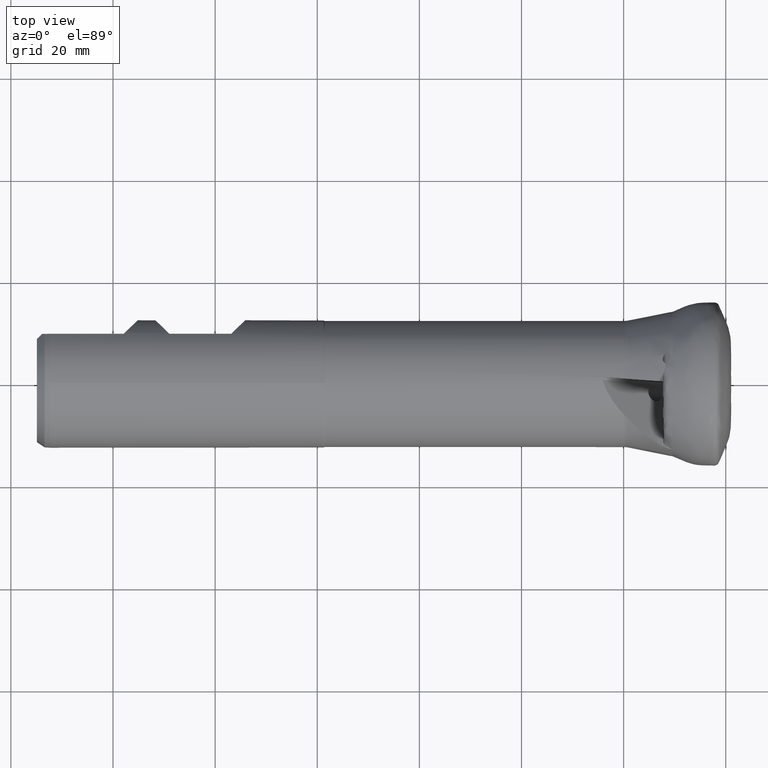
[diagram: clean part render]
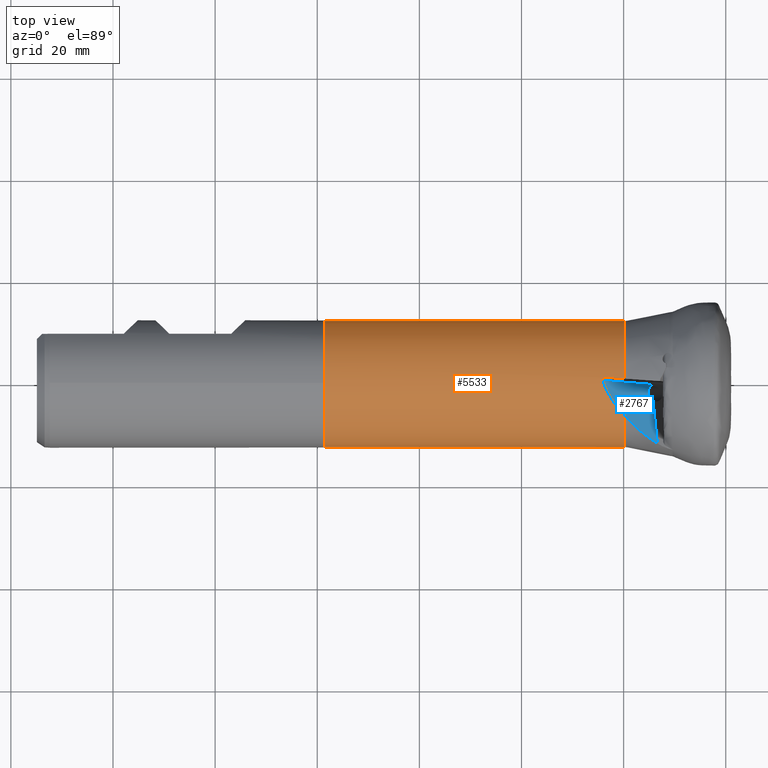
[diagram: same view with the hole feature highlighted: cylindrical wall and planar end face, labeled with their STEP entity ids]
A machine part, top view. The highlighted faces form one hole feature of diameter 24.8 mm: the cylindrical wall (entity #5533, orange) and its adjacent planar end face (entity #2767, blue) — they share a circular edge in the B-rep.
Wall:
#23 = VERTEX_POINT ( 'NONE', #3856 ) ;
#113 = CARTESIAN_POINT ( 'NONE',  ( -23.40010465994685200, -1.845840560606097700, 12.48686495285099700 ) ) ;
#140 = CARTESIAN_POINT ( 'NONE',  ( -24.08616488717508400, 0.5120036210849755500, 12.38942501861952600 ) ) ;
#211 =( BOUNDED_CURVE ( )  B_SPLINE_CURVE ( 3, ( #140, #113, #3755, #3809 ),
 .UNSPECIFIED., .F., .F. ) 
 B_SPLINE_CURVE_WITH_KNOTS ( ( 4, 4 ),
 ( 3.382142440947793400, 3.945495559307737700 ),
 .UNSPECIFIED. ) 
 CURVE ( )  GEOMETRIC_REPRESENTATION_ITEM ( )  RATIONAL_B_SPLINE_CURVE ( ( 1.000000000000000000, 0.9737271741579591700, 0.9737271741579591700, 1.000000000000000000 ) ) 
 REPRESENTATION_ITEM ( '' )  );
#429 = B_SPLINE_CURVE_WITH_KNOTS ( 'NONE', 3,
 ( #1672, #1678, #1661, #1658, #1651, #1648, #1640, #1636, #1627, #1613, #1606, #1590 ),
 .UNSPECIFIED., .F., .F.,
 ( 4, 2, 2, 2, 2, 4 ),
 ( 9.757819552369539900E-019, 0.0001468692598765670900, 0.0002937385197531332000, 0.0005874770395062651100, 0.0008812155592593970100, 0.001174954079012528900 ),
 .UNSPECIFIED. ) ;
#473 = CARTESIAN_POINT ( 'NONE',  ( -19.89004134527376500, 6.183368900197933700, -10.74829982109099400 ) ) ;
#489 = CARTESIAN_POINT ( 'NONE',  ( -24.08616488717508400, -0.5120036210849755500, -12.38942501861952600 ) ) ;
#506 = EDGE_CURVE ( 'NONE', #5817, #1637, #4054, .T. ) ;
#537 = CARTESIAN_POINT ( 'NONE',  ( -23.24405145381696900, -1.084063789852097900, -12.35252224039816000 ) ) ;
#544 = CARTESIAN_POINT ( 'NONE',  ( -19.89004134527376900, -0.8495285557354106400, -12.37086501555124900 ) ) ;
#547 =( BOUNDED_CURVE ( )  B_SPLINE_CURVE ( 3, ( #1298, #1254, #2860, #2671 ),
 .UNSPECIFIED., .F., .T. ) 
 B_SPLINE_CURVE_WITH_KNOTS ( ( 4, 4 ),
 ( 1.639360401890296300, 1.658332575621686200 ),
 .UNSPECIFIED. ) 
 CURVE ( )  GEOMETRIC_REPRESENTATION_ITEM ( )  RATIONAL_B_SPLINE_CURVE ( ( 1.000000000000000000, 0.9999700049435873400, 0.9999700049435873400, 1.000000000000000000 ) ) 
 REPRESENTATION_ITEM ( '' )  );
#615 = ORIENTED_EDGE ( 'NONE', *, *, #506, .F. ) ;
#716 = CARTESIAN_POINT ( 'NONE',  ( -19.89004134527376900, -0.8495285557354106400, -12.37086501555124900 ) ) ;
#788 = CARTESIAN_POINT ( 'NONE',  ( -78.55884901552569500, 0.0000000000000000000, -12.39999999999999000 ) ) ;
#823 =( BOUNDED_CURVE ( )  B_SPLINE_CURVE ( 3, ( #544, #5046, #3806, #537 ),
 .UNSPECIFIED., .F., .F. ) 
 B_SPLINE_CURVE_WITH_KNOTS ( ( 4, 4 ),
 ( 1.639360401890296300, 1.658332575621686200 ),
 .UNSPECIFIED. ) 
 CURVE ( )  GEOMETRIC_REPRESENTATION_ITEM ( )  RATIONAL_B_SPLINE_CURVE ( ( 1.000000000000000000, 0.9999700049435873400, 0.9999700049435873400, 1.000000000000000000 ) ) 
 REPRESENTATION_ITEM ( '' )  );
#885 = ORIENTED_EDGE ( 'NONE', *, *, #961, .F. ) ;
#910 = CARTESIAN_POINT ( 'NONE',  ( -19.89004134527376900, 0.0000000000000000000, 0.0000000000000000000 ) ) ;
#911 = DIRECTION ( 'NONE',  ( 1.000000000000000000, -0.0000000000000000000, -0.0000000000000000000 ) ) ;
#918 = DIRECTION ( 'NONE',  ( 0.0000000000000000000, 0.0000000000000000000, -1.000000000000000000 ) ) ;
#944 = EDGE_CURVE ( 'NONE', #4394, #4197, #823, .T. ) ;
#961 = EDGE_CURVE ( 'NONE', #1405, #5817, #1013, .T. ) ;
#1013 =( BOUNDED_CURVE ( )  B_SPLINE_CURVE ( 3, ( #489, #3305, #3223, #473 ),
 .UNSPECIFIED., .F., .F. ) 
 B_SPLINE_CURVE_WITH_KNOTS ( ( 4, 4 ),
 ( 3.382142440947793400, 3.945495559307737700 ),
 .UNSPECIFIED. ) 
 CURVE ( )  GEOMETRIC_REPRESENTATION_ITEM ( )  RATIONAL_B_SPLINE_CURVE ( ( 1.000000000000000000, 0.9737271741579591700, 0.9737271741579591700, 1.000000000000000000 ) ) 
 REPRESENTATION_ITEM ( '' )  );
#1080 = CIRCLE ( 'NONE', #4153, 12.39999999999998800 ) ;
#1254 = CARTESIAN_POINT ( 'NONE',  ( -21.00885740360323000, 0.9277637958455793300, 12.36549246719227400 ) ) ;
#1298 = CARTESIAN_POINT ( 'NONE',  ( -19.89004134527376900, 0.8495285557354106400, 12.37086501555124900 ) ) ;
#1306 = CARTESIAN_POINT ( 'NONE',  ( -24.08616488717508400, -0.5120036210849755500, -12.38942501861952600 ) ) ;
#1405 = VERTEX_POINT ( 'NONE', #1306 ) ;
#1444 = CIRCLE ( 'NONE', #4272, 12.39999999999999000 ) ;
#1451 = ORIENTED_EDGE ( 'NONE', *, *, #3707, .F. ) ;
#1590 = CARTESIAN_POINT ( 'NONE',  ( -23.24405145381696900, 1.084063789852097900, 12.35252224039816000 ) ) ;
#1606 = CARTESIAN_POINT ( 'NONE',  ( -23.34213097122912800, 1.090922177821686700, 12.35192034469541300 ) ) ;
#1609 = CYLINDRICAL_SURFACE ( 'NONE', #5847, 12.39999999999998800 ) ;
#1613 = CARTESIAN_POINT ( 'NONE',  ( -23.43947961464389400, 1.086113812856054600, 12.35235394115345100 ) ) ;
#1627 = CARTESIAN_POINT ( 'NONE',  ( -23.63265009920493000, 1.052117457994685000, 12.35529602869104200 ) ) ;
#1636 = CARTESIAN_POINT ( 'NONE',  ( -23.72626172958624100, 1.023435327547561800, 12.35777358190525500 ) ) ;
#1637 = VERTEX_POINT ( 'NONE', #4407 ) ;
#1640 = CARTESIAN_POINT ( 'NONE',  ( -23.90089069811528000, 0.9345448090207457700, 12.36481353564380300 ) ) ;
#1648 = CARTESIAN_POINT ( 'NONE',  ( -23.98237085165978000, 0.8736718330981563300, 12.36944901103014200 ) ) ;
#1651 = CARTESIAN_POINT ( 'NONE',  ( -24.06466515719549900, 0.7523251860271359400, 12.37722301817248500 ) ) ;
#1658 = CARTESIAN_POINT ( 'NONE',  ( -24.08510931450247500, 0.7062196491119476800, 12.37996702173211500 ) ) ;
#1661 = CARTESIAN_POINT ( 'NONE',  ( -24.10283271111432100, 0.6098227277811949500, 12.38508966025874100 ) ) ;
#1672 = CARTESIAN_POINT ( 'NONE',  ( -24.08616488717508400, 0.5120036210849755500, 12.38942501861952600 ) ) ;
#1678 = CARTESIAN_POINT ( 'NONE',  ( -24.10003802925033200, 0.5596826819395273000, 12.38745464051313900 ) ) ;
#1994 = VERTEX_POINT ( 'NONE', #3051 ) ;
#2021 = CARTESIAN_POINT ( 'NONE',  ( -24.10283271111432100, -0.6098227277811949500, -12.38508966025874100 ) ) ;
#2037 = VERTEX_POINT ( 'NONE', #788 ) ;
#2083 = EDGE_CURVE ( 'NONE', #1994, #4011, #211, .T. ) ;
#2146 = CARTESIAN_POINT ( 'NONE',  ( -24.10003802925033200, -0.5596826819395273000, -12.38745464051313900 ) ) ;
#2200 = CARTESIAN_POINT ( 'NONE',  ( -24.08616488717508400, -0.5120036210849755500, -12.38942501861952600 ) ) ;
#2511 = CARTESIAN_POINT ( 'NONE',  ( -23.24405145381696900, -1.084063789852097900, -12.35252224039816000 ) ) ;
#2535 = CARTESIAN_POINT ( 'NONE',  ( -19.89004134527376500, 6.183368900197933700, -10.74829982109099400 ) ) ;
#2551 = EDGE_CURVE ( 'NONE', #1405, #4197, #5507, .T. ) ;
#2620 = CARTESIAN_POINT ( 'NONE',  ( -78.55884901552569500, 0.0000000000000000000, 0.0000000000000000000 ) ) ;
#2671 = CARTESIAN_POINT ( 'NONE',  ( -23.24405145381696900, 1.084063789852097900, 12.35252224039816000 ) ) ;
#2695 = FACE_OUTER_BOUND ( 'NONE', #5551, .T. ) ;
#2795 = DIRECTION ( 'NONE',  ( 0.0000000000000000000, 0.0000000000000000000, -1.000000000000000000 ) ) ;
#2803 = DIRECTION ( 'NONE',  ( 1.000000000000000000, -0.0000000000000000000, -0.0000000000000000000 ) ) ;
#2860 = CARTESIAN_POINT ( 'NONE',  ( -22.12689430869767200, 1.005944552254007100, 12.35937802540488100 ) ) ;
#3051 = CARTESIAN_POINT ( 'NONE',  ( -24.08616488717508400, 0.5120036210849755500, 12.38942501861952600 ) ) ;
#3223 = CARTESIAN_POINT ( 'NONE',  ( -21.96365728082344400, 4.137848937960467500, -11.92506309805263100 ) ) ;
#3305 = CARTESIAN_POINT ( 'NONE',  ( -23.40010465994685200, 1.845840560606097700, -12.48686495285099700 ) ) ;
#3479 = EDGE_CURVE ( 'NONE', #2037, #2037, #1444, .T. ) ;
#3658 = EDGE_CURVE ( 'NONE', #1994, #23, #429, .T. ) ;
#3707 = EDGE_CURVE ( 'NONE', #1637, #23, #547, .T. ) ;
#3755 = CARTESIAN_POINT ( 'NONE',  ( -21.96365728082344400, -4.137848937960467500, 11.92506309805263100 ) ) ;
#3806 = CARTESIAN_POINT ( 'NONE',  ( -22.12689430869767200, -1.005944552254007100, -12.35937802540488100 ) ) ;
#3809 = CARTESIAN_POINT ( 'NONE',  ( -19.89004134527376500, -6.183368900197933700, 10.74829982109099400 ) ) ;
#3856 = CARTESIAN_POINT ( 'NONE',  ( -23.24405145381696900, 1.084063789852097900, 12.35252224039816000 ) ) ;
#3975 = EDGE_LOOP ( 'NONE', ( #4910, #5494, #1451, #615, #885, #3991, #5919, #4509 ) ) ;
#3991 = ORIENTED_EDGE ( 'NONE', *, *, #2551, .T. ) ;
#4011 = VERTEX_POINT ( 'NONE', #4472 ) ;
#4048 = FACE_OUTER_BOUND ( 'NONE', #3975, .T. ) ;
#4054 = CIRCLE ( 'NONE', #4547, 12.39999999999998800 ) ;
#4060 = DIRECTION ( 'NONE',  ( 1.000000000000000000, -0.0000000000000000000, -0.0000000000000000000 ) ) ;
#4146 = DIRECTION ( 'NONE',  ( 0.0000000000000000000, 0.0000000000000000000, -1.000000000000000000 ) ) ;
#4153 = AXIS2_PLACEMENT_3D ( 'NONE', #4481, #4469, #4463 ) ;
#4181 = CARTESIAN_POINT ( 'NONE',  ( 0.0000000000000000000, 0.0000000000000000000, 0.0000000000000000000 ) ) ;
#4197 = VERTEX_POINT ( 'NONE', #2511 ) ;
#4272 = AXIS2_PLACEMENT_3D ( 'NONE', #2620, #2803, #2795 ) ;
#4394 = VERTEX_POINT ( 'NONE', #716 ) ;
#4407 = CARTESIAN_POINT ( 'NONE',  ( -19.89004134527376900, 0.8495285557354106400, 12.37086501555124900 ) ) ;
#4463 = DIRECTION ( 'NONE',  ( 0.0000000000000000000, 0.0000000000000000000, -1.000000000000000000 ) ) ;
#4469 = DIRECTION ( 'NONE',  ( 1.000000000000000000, -0.0000000000000000000, -0.0000000000000000000 ) ) ;
#4472 = CARTESIAN_POINT ( 'NONE',  ( -19.89004134527376500, -6.183368900197933700, 10.74829982109099400 ) ) ;
#4481 = CARTESIAN_POINT ( 'NONE',  ( -19.89004134527376900, 0.0000000000000000000, 0.0000000000000000000 ) ) ;
#4509 = ORIENTED_EDGE ( 'NONE', *, *, #5506, .F. ) ;
#4547 = AXIS2_PLACEMENT_3D ( 'NONE', #910, #911, #918 ) ;
#4657 = CARTESIAN_POINT ( 'NONE',  ( -23.24405145381696900, -1.084063789852097900, -12.35252224039816000 ) ) ;
#4702 = CARTESIAN_POINT ( 'NONE',  ( -23.34213097122912800, -1.090922177821686700, -12.35192034469541300 ) ) ;
#4910 = ORIENTED_EDGE ( 'NONE', *, *, #2083, .F. ) ;
#4969 = CARTESIAN_POINT ( 'NONE',  ( -23.43947961464389400, -1.086113812856054600, -12.35235394115345100 ) ) ;
#5046 = CARTESIAN_POINT ( 'NONE',  ( -21.00885740360323000, -0.9277637958455793300, -12.36549246719227400 ) ) ;
#5179 = CARTESIAN_POINT ( 'NONE',  ( -23.63265009920493000, -1.052117457994685000, -12.35529602869104200 ) ) ;
#5302 = CARTESIAN_POINT ( 'NONE',  ( -23.72626172958624100, -1.023435327547561800, -12.35777358190525500 ) ) ;
#5460 = CARTESIAN_POINT ( 'NONE',  ( -23.90089069811528000, -0.9345448090207457700, -12.36481353564380300 ) ) ;
#5494 = ORIENTED_EDGE ( 'NONE', *, *, #3658, .T. ) ;
#5506 = EDGE_CURVE ( 'NONE', #4011, #4394, #1080, .T. ) ;
#5507 = B_SPLINE_CURVE_WITH_KNOTS ( 'NONE', 3,
 ( #2200, #2146, #2021, #5794, #5758, #5552, #5460, #5302, #5179, #4969, #4702, #4657 ),
 .UNSPECIFIED., .F., .F.,
 ( 4, 2, 2, 2, 2, 4 ),
 ( 9.757819552369539900E-019, 0.0001468692598765670900, 0.0002937385197531332000, 0.0005874770395062651100, 0.0008812155592593970100, 0.001174954079012528900 ),
 .UNSPECIFIED. ) ;
#5533 = ADVANCED_FACE ( 'Fl�che9', ( #4048, #2695 ), #1609, .T. ) ;
#5551 = EDGE_LOOP ( 'NONE', ( #5808 ) ) ;
#5552 = CARTESIAN_POINT ( 'NONE',  ( -23.98237085165978000, -0.8736718330981563300, -12.36944901103014200 ) ) ;
#5758 = CARTESIAN_POINT ( 'NONE',  ( -24.06466515719549900, -0.7523251860271359400, -12.37722301817248500 ) ) ;
#5794 = CARTESIAN_POINT ( 'NONE',  ( -24.08510931450247500, -0.7062196491119476800, -12.37996702173211500 ) ) ;
#5808 = ORIENTED_EDGE ( 'NONE', *, *, #3479, .T. ) ;
#5817 = VERTEX_POINT ( 'NONE', #2535 ) ;
#5847 = AXIS2_PLACEMENT_3D ( 'NONE', #4181, #4060, #4146 ) ;
#5919 = ORIENTED_EDGE ( 'NONE', *, *, #944, .F. ) ;
End face:
#8 = VECTOR ( 'NONE', #2804, 1000.000000000000100 ) ;
#113 = CARTESIAN_POINT ( 'NONE',  ( -23.40010465994685200, -1.845840560606097700, 12.48686495285099700 ) ) ;
#140 = CARTESIAN_POINT ( 'NONE',  ( -24.08616488717508400, 0.5120036210849755500, 12.38942501861952600 ) ) ;
#211 =( BOUNDED_CURVE ( )  B_SPLINE_CURVE ( 3, ( #140, #113, #3755, #3809 ),
 .UNSPECIFIED., .F., .F. ) 
 B_SPLINE_CURVE_WITH_KNOTS ( ( 4, 4 ),
 ( 3.382142440947793400, 3.945495559307737700 ),
 .UNSPECIFIED. ) 
 CURVE ( )  GEOMETRIC_REPRESENTATION_ITEM ( )  RATIONAL_B_SPLINE_CURVE ( ( 1.000000000000000000, 0.9737271741579591700, 0.9737271741579591700, 1.000000000000000000 ) ) 
 REPRESENTATION_ITEM ( '' )  );
#311 = AXIS2_PLACEMENT_3D ( 'NONE', #3434, #3379, #3355 ) ;
#433 = EDGE_CURVE ( 'NONE', #675, #4248, #4442, .T. ) ;
#503 = VECTOR ( 'NONE', #2002, 1000.000000000000100 ) ;
#675 = VERTEX_POINT ( 'NONE', #1089 ) ;
#844 = EDGE_CURVE ( 'NONE', #2838, #675, #1919, .T. ) ;
#881 = ORIENTED_EDGE ( 'NONE', *, *, #433, .T. ) ;
#1066 = CARTESIAN_POINT ( 'NONE',  ( -13.40527637212814800, -11.74805511178591500, 6.827262013307659100 ) ) ;
#1089 = CARTESIAN_POINT ( 'NONE',  ( -14.53020550766217400, -0.5110801553125690100, 4.533187395408397400 ) ) ;
#1231 = LINE ( 'NONE', #2792, #8 ) ;
#1553 = CARTESIAN_POINT ( 'NONE',  ( -15.53812242552757200, -2.498596273336104500, 5.968578814753350900 ) ) ;
#1603 = CARTESIAN_POINT ( 'NONE',  ( -14.25359801755823200, -3.274126591651337600, 5.097274680663959500 ) ) ;
#1620 = CARTESIAN_POINT ( 'NONE',  ( -15.69679639279365300, -0.9135938584357304900, 5.644994057875584800 ) ) ;
#1621 = CARTESIAN_POINT ( 'NONE',  ( -14.53020550766217400, -0.5110801553125690100, 4.533187395408397400 ) ) ;
#1657 = DIRECTION ( 'NONE',  ( -0.7672847685016595000, 0.05365377771412027700, 0.6390581790121761000 ) ) ;
#1719 = CARTESIAN_POINT ( 'NONE',  ( -24.18992172626201800, 0.5192590060596569100, 12.47584229075753400 ) ) ;
#1850 = EDGE_CURVE ( 'NONE', #4623, #2838, #1231, .T. ) ;
#1919 =( BOUNDED_CURVE ( )  B_SPLINE_CURVE ( 3, ( #1603, #1553, #1620, #1621 ),
 .UNSPECIFIED., .F., .F. ) 
 B_SPLINE_CURVE_WITH_KNOTS ( ( 4, 4 ),
 ( 1.495020472309848600, 3.875101729785409800 ),
 .UNSPECIFIED. ) 
 CURVE ( )  GEOMETRIC_REPRESENTATION_ITEM ( )  RATIONAL_B_SPLINE_CURVE ( ( 1.000000000000000000, 0.5810814356629738800, 0.5810814356629738800, 1.000000000000000000 ) ) 
 REPRESENTATION_ITEM ( '' )  );
#1993 = CARTESIAN_POINT ( 'NONE',  ( -14.62959053600901300, 0.4816820012579975400, 4.330510921195249300 ) ) ;
#1994 = VERTEX_POINT ( 'NONE', #3051 ) ;
#2002 = DIRECTION ( 'NONE',  ( -0.09761794098781870200, 0.9751106301126051300, -0.1990728425443731600 ) ) ;
#2083 = EDGE_CURVE ( 'NONE', #1994, #4011, #211, .T. ) ;
#2216 = FACE_OUTER_BOUND ( 'NONE', #5063, .T. ) ;
#2309 = CARTESIAN_POINT ( 'NONE',  ( -17.69207303484445500, -8.667618504329919200, 9.592486571145531800 ) ) ;
#2338 = EDGE_CURVE ( 'NONE', #5322, #4623, #5929, .T. ) ;
#2572 = CARTESIAN_POINT ( 'NONE',  ( -19.32556363557012700, -6.787161694477395800, 10.44156120632590800 ) ) ;
#2605 = ORIENTED_EDGE ( 'NONE', *, *, #2338, .T. ) ;
#2767 = ADVANCED_FACE ( 'NONE', ( #2216 ), #3988, .F. ) ;
#2771 = ORIENTED_EDGE ( 'NONE', *, *, #4551, .T. ) ;
#2792 = CARTESIAN_POINT ( 'NONE',  ( -14.62959053600901300, 0.4816820012579975400, 4.330510921195249300 ) ) ;
#2804 = DIRECTION ( 'NONE',  ( -0.09761794098781870200, 0.9751106301126051300, -0.1990728425443731600 ) ) ;
#2838 = VERTEX_POINT ( 'NONE', #2911 ) ;
#2911 = CARTESIAN_POINT ( 'NONE',  ( -14.25359801755823200, -3.274126591651337600, 5.097274680663959500 ) ) ;
#2976 = CARTESIAN_POINT ( 'NONE',  ( -14.56598144723909100, -0.1537124559869642600, 4.460229310918974100 ) ) ;
#3051 = CARTESIAN_POINT ( 'NONE',  ( -24.08616488717508400, 0.5120036210849755500, 12.38942501861952600 ) ) ;
#3173 = CARTESIAN_POINT ( 'NONE',  ( -19.69583964812065000, -6.374939306952999400, 10.63809164723605600 ) ) ;
#3355 = DIRECTION ( 'NONE',  ( -0.7607627526653432100, 0.0000000000000000000, 0.6490300718434006700 ) ) ;
#3379 = DIRECTION ( 'NONE',  ( -0.6338334336579709600, -0.2151291035132201200, -0.7429499627827871300 ) ) ;
#3434 = CARTESIAN_POINT ( 'NONE',  ( -14.62959053600901300, 0.4816820012579977100, 4.330510921195251900 ) ) ;
#3587 = CARTESIAN_POINT ( 'NONE',  ( -19.32556363557012700, -6.787161694477395800, 10.44156120632590800 ) ) ;
#3601 = ORIENTED_EDGE ( 'NONE', *, *, #1850, .T. ) ;
#3614 = LINE ( 'NONE', #1719, #5068 ) ;
#3645 = ORIENTED_EDGE ( 'NONE', *, *, #4337, .T. ) ;
#3755 = CARTESIAN_POINT ( 'NONE',  ( -21.96365728082344400, -4.137848937960467500, 11.92506309805263100 ) ) ;
#3776 = CARTESIAN_POINT ( 'NONE',  ( -13.40527637212814800, -11.74805511178591500, 6.827262013307659100 ) ) ;
#3809 = CARTESIAN_POINT ( 'NONE',  ( -19.89004134527376500, -6.183368900197933700, 10.74829982109099400 ) ) ;
#3988 = PLANE ( 'NONE',  #311 ) ;
#4011 = VERTEX_POINT ( 'NONE', #4472 ) ;
#4248 = VERTEX_POINT ( 'NONE', #2976 ) ;
#4337 = EDGE_CURVE ( 'NONE', #4248, #1994, #3614, .T. ) ;
#4442 = LINE ( 'NONE', #1993, #503 ) ;
#4472 = CARTESIAN_POINT ( 'NONE',  ( -19.89004134527376500, -6.183368900197933700, 10.74829982109099400 ) ) ;
#4527 = CARTESIAN_POINT ( 'NONE',  ( -15.69051209583768400, -10.34482267446805200, 8.370545850244914400 ) ) ;
#4551 = EDGE_CURVE ( 'NONE', #4011, #5322, #4756, .T. ) ;
#4563 = ORIENTED_EDGE ( 'NONE', *, *, #844, .T. ) ;
#4623 = VERTEX_POINT ( 'NONE', #3776 ) ;
#4756 = B_SPLINE_CURVE_WITH_KNOTS ( 'NONE', 3,
 ( #4857, #3173, #5999, #3587 ),
 .UNSPECIFIED., .F., .F.,
 ( 4, 4 ),
 ( 3.026509036017522900E-007, 0.0008819428274858543900 ),
 .UNSPECIFIED. ) ;
#4857 = CARTESIAN_POINT ( 'NONE',  ( -19.89004134527376500, -6.183368900197933700, 10.74829982109099400 ) ) ;
#5063 = EDGE_LOOP ( 'NONE', ( #3601, #4563, #881, #3645, #5356, #2771, #2605 ) ) ;
#5068 = VECTOR ( 'NONE', #1657, 1000.000000000000000 ) ;
#5230 = CARTESIAN_POINT ( 'NONE',  ( -19.32556363557012700, -6.787161694477395800, 10.44156120632590800 ) ) ;
#5322 = VERTEX_POINT ( 'NONE', #5230 ) ;
#5356 = ORIENTED_EDGE ( 'NONE', *, *, #2083, .T. ) ;
#5929 =( BOUNDED_CURVE ( )  B_SPLINE_CURVE ( 3, ( #2572, #2309, #4527, #1066 ),
 .UNSPECIFIED., .F., .F. ) 
 B_SPLINE_CURVE_WITH_KNOTS ( ( 4, 4 ),
 ( 3.833724541972455500, 4.245131218430408600 ),
 .UNSPECIFIED. ) 
 CURVE ( )  GEOMETRIC_REPRESENTATION_ITEM ( )  RATIONAL_B_SPLINE_CURVE ( ( 1.000000000000000000, 0.9859450438682447700, 0.9859450438682447700, 1.000000000000000000 ) ) 
 REPRESENTATION_ITEM ( '' )  );
#5999 = CARTESIAN_POINT ( 'NONE',  ( -19.50815482963302800, -6.576964675809406900, 10.53647056877784400 ) ) ;